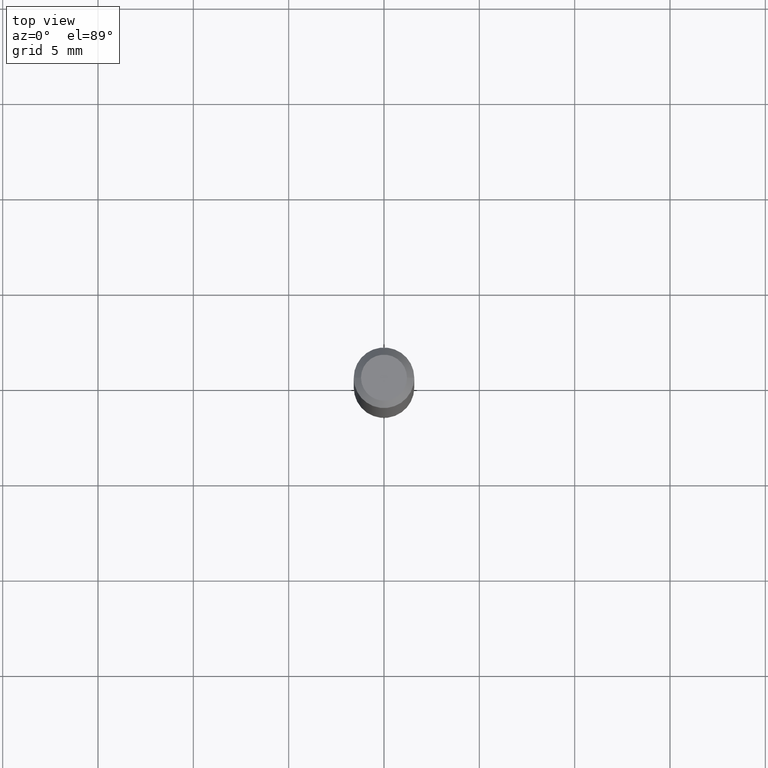
[diagram: clean part render]
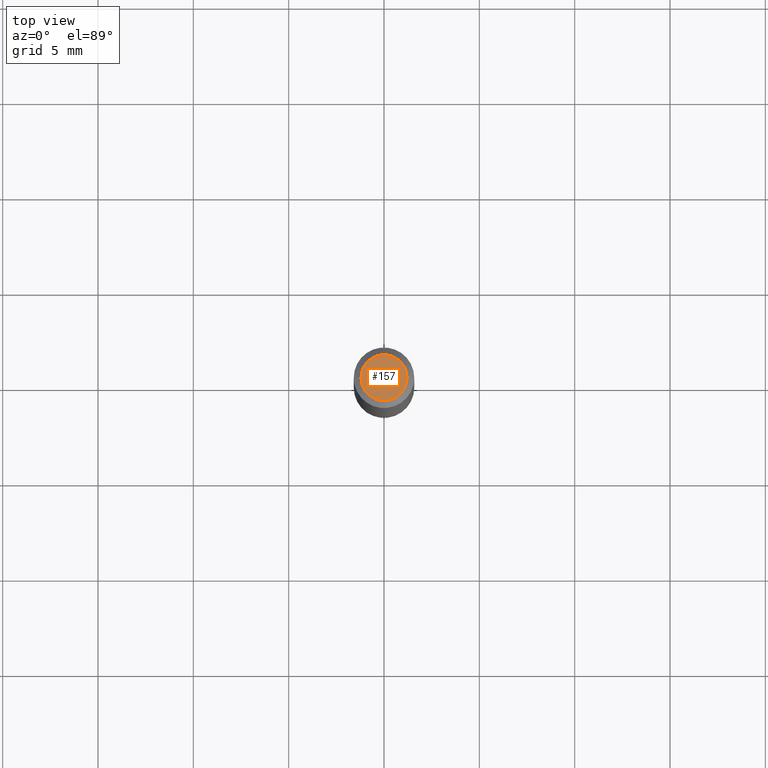
[diagram: same view with one face highlighted and labeled with its STEP entity id]
A machine part, top view. The second image highlights one B-rep face of the part: STEP entity #157.
In plain terms, the highlighted planar face has unit normal (0, -0, -1).
Its self-contained STEP definition (entity closure, byte-faithful):
#15 = EDGE_CURVE ( 'NONE', #410, #412, #57, .T. ) ;
#22 = EDGE_LOOP ( 'NONE', ( #334, #489 ) ) ;
#57 = CIRCLE ( 'NONE', #478, 0.04750000000000000749 ) ;
#64 = CARTESIAN_POINT ( 'NONE',  ( -0.04750000000000000749, 3.578768372314221353E-16, 2.731847993664239060E-16 ) ) ;
#72 = DIRECTION ( 'NONE',  ( -2.445468806185136597E-29, 3.491481338843145583E-15, 1.000000000000000000 ) ) ;
#76 = AXIS2_PLACEMENT_3D ( 'NONE', #351, #310, #510 ) ;
#82 = DIRECTION ( 'NONE',  ( 1.000000000000000000, -6.982962677686266711E-15, 4.852736867747365086E-29 ) ) ;
#109 = FACE_OUTER_BOUND ( 'NONE', #22, .T. ) ;
#127 = DIRECTION ( 'NONE',  ( -2.445468806185136597E-29, 3.491481338843145583E-15, 1.000000000000000000 ) ) ;
#157 = ADVANCED_FACE ( 'NONE', ( #109 ), #186, .F. ) ;
#172 = CIRCLE ( 'NONE', #276, 0.04750000000000000749 ) ;
#186 = PLANE ( 'NONE',  #76 ) ;
#198 = CARTESIAN_POINT ( 'NONE',  ( -6.680649051745406845E-45, 9.538196290434862081E-31, 2.731847993664263218E-16 ) ) ;
#276 = AXIS2_PLACEMENT_3D ( 'NONE', #198, #127, #82 ) ;
#286 = EDGE_CURVE ( 'NONE', #412, #410, #172, .T. ) ;
#299 = CARTESIAN_POINT ( 'NONE',  ( 0.04750000000000000749, -4.035134999187568762E-16, 2.731847993664288856E-16 ) ) ;
#310 = DIRECTION ( 'NONE',  ( 2.438088387897960049E-29, -3.491481338843145188E-15, -1.000000000000000000 ) ) ;
#334 = ORIENTED_EDGE ( 'NONE', *, *, #286, .T. ) ;
#351 = CARTESIAN_POINT ( 'NONE',  ( 3.316907271900976589E-16, 0.04750000000000000749, -2.925296391183627249E-17 ) ) ;
#410 = VERTEX_POINT ( 'NONE', #299 ) ;
#412 = VERTEX_POINT ( 'NONE', #64 ) ;
#478 = AXIS2_PLACEMENT_3D ( 'NONE', #518, #72, #512 ) ;
#489 = ORIENTED_EDGE ( 'NONE', *, *, #15, .T. ) ;
#510 = DIRECTION ( 'NONE',  ( -1.000000000000000000, 6.982962677686265922E-15, -4.876176775795935793E-29 ) ) ;
#512 = DIRECTION ( 'NONE',  ( 1.000000000000000000, -6.982962677686266711E-15, 4.852736867747365086E-29 ) ) ;
#518 = CARTESIAN_POINT ( 'NONE',  ( -6.680649051745406845E-45, 9.538196290434862081E-31, 2.731847993664263218E-16 ) ) ;